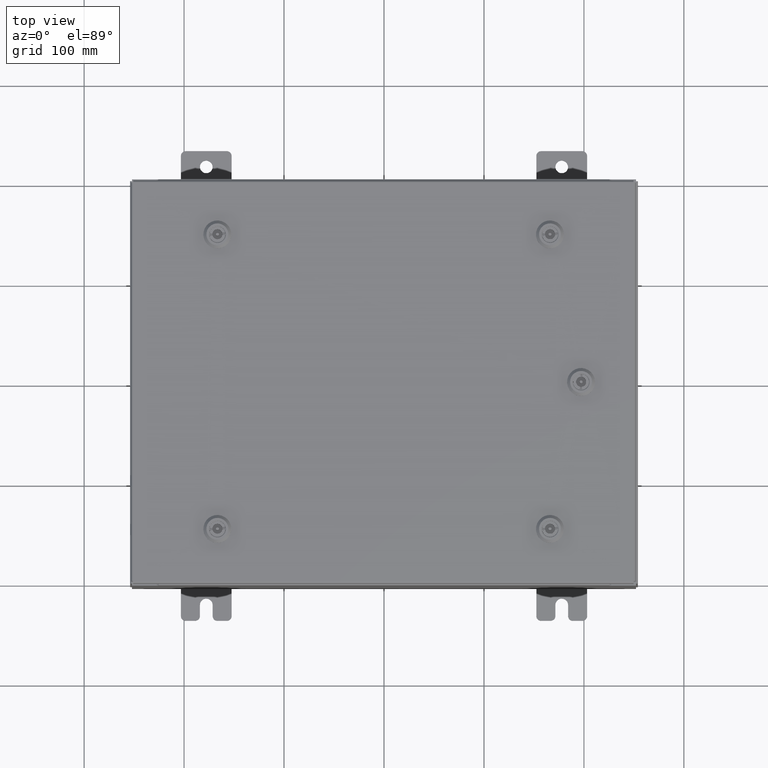
[diagram: clean part render]
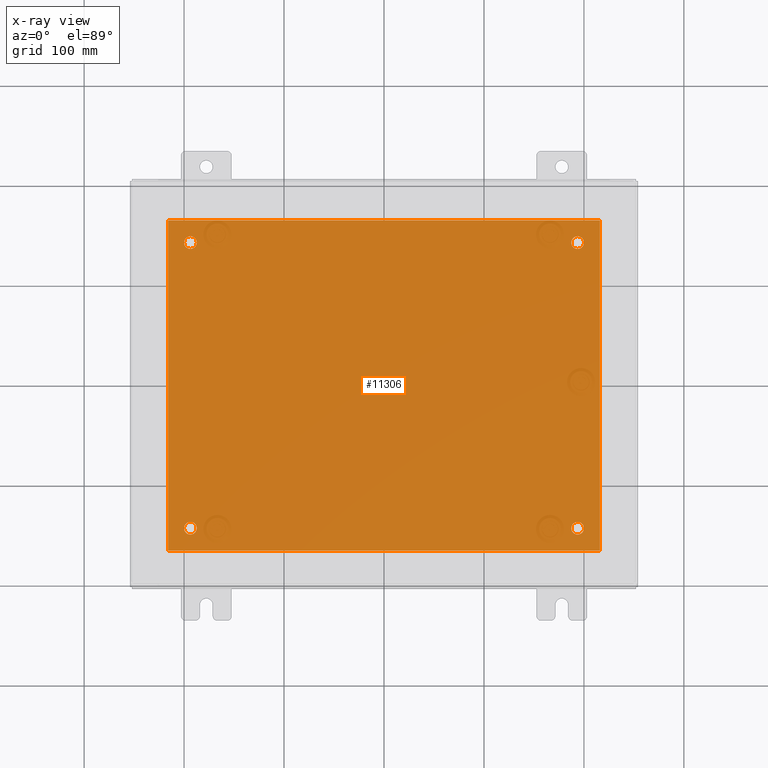
[diagram: x-ray — body ghosted, one internal face saturated and labeled with its STEP entity id]
A machine part, top view, then the same camera in x-ray: the body is ghosted and one INTERNAL B-rep face — a face not visible from any outside direction — is saturated and labeled: STEP entity #11306.
In plain terms, the highlighted planar face has unit normal (0, 0, -1).
Its self-contained STEP definition (entity closure, byte-faithful):
#39 = AXIS2_PLACEMENT_3D ( 'NONE', #48900, #19832, #53806 ) ;
#477 = DIRECTION ( 'NONE',  ( -1.000000000000000000, 0.0000000000000000000, 0.0000000000000000000 ) ) ;
#543 = ORIENTED_EDGE ( 'NONE', *, *, #13843, .F. ) ;
#889 = ORIENTED_EDGE ( 'NONE', *, *, #62983, .F. ) ;
#1059 = VERTEX_POINT ( 'NONE', #13703 ) ;
#1162 = EDGE_LOOP ( 'NONE', ( #50112, #10726 ) ) ;
#1281 = CARTESIAN_POINT ( 'NONE',  ( 8.500000000000003600, -6.500000000000000000, -0.1040000000000000400 ) ) ;
#1331 = AXIS2_PLACEMENT_3D ( 'NONE', #58648, #29586, #477 ) ;
#2456 = CARTESIAN_POINT ( 'NONE',  ( 7.625000000000000000, 5.625000000000000000, -0.1040000000000000400 ) ) ;
#4048 = ORIENTED_EDGE ( 'NONE', *, *, #25275, .F. ) ;
#4297 = CIRCLE ( 'NONE', #1331, 0.2499999999999998100 ) ;
#4315 = VECTOR ( 'NONE', #11952, 39.37007874015748100 ) ;
#4436 = EDGE_CURVE ( 'NONE', #32590, #26047, #46019, .T. ) ;
#4646 = DIRECTION ( 'NONE',  ( -1.000000000000000000, -0.0000000000000000000, -0.0000000000000000000 ) ) ;
#4746 = DIRECTION ( 'NONE',  ( -0.0000000000000000000, -0.0000000000000000000, 1.000000000000000000 ) ) ;
#4783 = EDGE_CURVE ( 'NONE', #55509, #35031, #12583, .T. ) ;
#4874 = FACE_BOUND ( 'NONE', #12177, .T. ) ;
#5002 = CARTESIAN_POINT ( 'NONE',  ( 7.625000000000000000, -5.625000000000000000, -0.1040000000000000400 ) ) ;
#7326 = DIRECTION ( 'NONE',  ( -1.000000000000000000, 0.0000000000000000000, 0.0000000000000000000 ) ) ;
#7349 = ORIENTED_EDGE ( 'NONE', *, *, #26855, .F. ) ;
#8995 = AXIS2_PLACEMENT_3D ( 'NONE', #33837, #4746, #38664 ) ;
#9289 = VERTEX_POINT ( 'NONE', #60514 ) ;
#9336 = ORIENTED_EDGE ( 'NONE', *, *, #4783, .T. ) ;
#9587 = CARTESIAN_POINT ( 'NONE',  ( 0.0000000000000000000, 0.0000000000000000000, -0.1040000000000000400 ) ) ;
#9848 = DIRECTION ( 'NONE',  ( -1.000000000000000000, 0.0000000000000000000, 0.0000000000000000000 ) ) ;
#9984 = AXIS2_PLACEMENT_3D ( 'NONE', #9587, #14480, #48428 ) ;
#10198 = EDGE_LOOP ( 'NONE', ( #889, #543, #4048, #7349 ) ) ;
#10726 = ORIENTED_EDGE ( 'NONE', *, *, #24074, .T. ) ;
#10830 = CIRCLE ( 'NONE', #39, 0.2499999999999998100 ) ;
#11306 = ADVANCED_FACE ( 'NONE', ( #17794, #4874, #56531, #32229, #30690 ), #14264, .T. ) ;
#11310 = CARTESIAN_POINT ( 'NONE',  ( -8.499999999999996400, -6.500000000000000000, -0.1040000000000000400 ) ) ;
#11952 = DIRECTION ( 'NONE',  ( 0.0000000000000000000, 1.000000000000000000, 0.0000000000000000000 ) ) ;
#12167 = VECTOR ( 'NONE', #4646, 39.37007874015748100 ) ;
#12177 = EDGE_LOOP ( 'NONE', ( #37936, #36617 ) ) ;
#12535 = CIRCLE ( 'NONE', #37927, 0.2499999999999987000 ) ;
#12583 = CIRCLE ( 'NONE', #8995, 0.2499999999999998100 ) ;
#13703 = CARTESIAN_POINT ( 'NONE',  ( 7.375000000000000900, -5.625000000000000000, -0.1040000000000000400 ) ) ;
#13778 = CARTESIAN_POINT ( 'NONE',  ( 7.625000000000000000, -5.625000000000000000, -0.1040000000000000400 ) ) ;
#13843 = EDGE_CURVE ( 'NONE', #16119, #50153, #38100, .T. ) ;
#14264 = PLANE ( 'NONE',  #9984 ) ;
#14480 = DIRECTION ( 'NONE',  ( 0.0000000000000000000, 0.0000000000000000000, -1.000000000000000000 ) ) ;
#14746 = AXIS2_PLACEMENT_3D ( 'NONE', #49271, #20198, #54179 ) ;
#15115 = CIRCLE ( 'NONE', #51858, 0.2499999999999998100 ) ;
#16119 = VERTEX_POINT ( 'NONE', #11310 ) ;
#17794 = FACE_BOUND ( 'NONE', #1162, .T. ) ;
#18667 = DIRECTION ( 'NONE',  ( -1.000000000000000000, 0.0000000000000000000, 0.0000000000000000000 ) ) ;
#18820 = CARTESIAN_POINT ( 'NONE',  ( -8.499999999999996400, 6.500000000000000000, -0.1040000000000000400 ) ) ;
#19117 = VECTOR ( 'NONE', #42974, 39.37007874015748100 ) ;
#19832 = DIRECTION ( 'NONE',  ( -0.0000000000000000000, -0.0000000000000000000, 1.000000000000000000 ) ) ;
#20198 = DIRECTION ( 'NONE',  ( -0.0000000000000000000, -0.0000000000000000000, 1.000000000000000000 ) ) ;
#20945 = ORIENTED_EDGE ( 'NONE', *, *, #60435, .T. ) ;
#24074 = EDGE_CURVE ( 'NONE', #62860, #9289, #10830, .T. ) ;
#24404 = CARTESIAN_POINT ( 'NONE',  ( 7.375000000000000900, 5.625000000000000000, -0.1040000000000000400 ) ) ;
#25194 = VECTOR ( 'NONE', #47539, 39.37007874015748100 ) ;
#25275 = EDGE_CURVE ( 'NONE', #30837, #16119, #41882, .T. ) ;
#25934 = CARTESIAN_POINT ( 'NONE',  ( -7.625000000000000000, 5.625000000000000000, -0.1040000000000000400 ) ) ;
#26047 = VERTEX_POINT ( 'NONE', #33045 ) ;
#26855 = EDGE_CURVE ( 'NONE', #61479, #30837, #34966, .T. ) ;
#28721 = EDGE_CURVE ( 'NONE', #35031, #55509, #15115, .T. ) ;
#29586 = DIRECTION ( 'NONE',  ( -0.0000000000000000000, -0.0000000000000000000, 1.000000000000000000 ) ) ;
#30690 = FACE_OUTER_BOUND ( 'NONE', #10198, .T. ) ;
#30806 = DIRECTION ( 'NONE',  ( -1.000000000000000000, 0.0000000000000000000, 0.0000000000000000000 ) ) ;
#30837 = VERTEX_POINT ( 'NONE', #18820 ) ;
#32229 = FACE_BOUND ( 'NONE', #44883, .T. ) ;
#32569 = CIRCLE ( 'NONE', #14746, 0.2499999999999987000 ) ;
#32590 = VERTEX_POINT ( 'NONE', #24404 ) ;
#33045 = CARTESIAN_POINT ( 'NONE',  ( 7.874999999999998200, 5.625000000000000000, -0.1040000000000000400 ) ) ;
#33837 = CARTESIAN_POINT ( 'NONE',  ( -7.625000000000000000, 5.625000000000000000, -0.1040000000000000400 ) ) ;
#34966 = LINE ( 'NONE', #62806, #12167 ) ;
#35031 = VERTEX_POINT ( 'NONE', #50258 ) ;
#36231 = AXIS2_PLACEMENT_3D ( 'NONE', #2456, #36384, #7326 ) ;
#36384 = DIRECTION ( 'NONE',  ( -0.0000000000000000000, -0.0000000000000000000, 1.000000000000000000 ) ) ;
#36617 = ORIENTED_EDGE ( 'NONE', *, *, #38036, .T. ) ;
#37772 = CARTESIAN_POINT ( 'NONE',  ( -8.499999999999996400, -6.500000000000000000, -0.1040000000000000400 ) ) ;
#37900 = CARTESIAN_POINT ( 'NONE',  ( -8.499999999999996400, -6.500000000000000000, -0.1040000000000000400 ) ) ;
#37927 = AXIS2_PLACEMENT_3D ( 'NONE', #13778, #47727, #18667 ) ;
#37936 = ORIENTED_EDGE ( 'NONE', *, *, #45341, .T. ) ;
#38036 = EDGE_CURVE ( 'NONE', #1059, #55453, #12535, .T. ) ;
#38100 = LINE ( 'NONE', #37772, #25194 ) ;
#38664 = DIRECTION ( 'NONE',  ( -1.000000000000000000, 0.0000000000000000000, 0.0000000000000000000 ) ) ;
#38931 = DIRECTION ( 'NONE',  ( -0.0000000000000000000, -0.0000000000000000000, 1.000000000000000000 ) ) ;
#41882 = LINE ( 'NONE', #37900, #19117 ) ;
#42974 = DIRECTION ( 'NONE',  ( -0.0000000000000000000, -1.000000000000000000, -0.0000000000000000000 ) ) ;
#42992 = LINE ( 'NONE', #60591, #4315 ) ;
#44231 = AXIS2_PLACEMENT_3D ( 'NONE', #5002, #38931, #9848 ) ;
#44883 = EDGE_LOOP ( 'NONE', ( #62484, #9336 ) ) ;
#45341 = EDGE_CURVE ( 'NONE', #55453, #1059, #46288, .T. ) ;
#46019 = CIRCLE ( 'NONE', #36231, 0.2499999999999987000 ) ;
#46288 = CIRCLE ( 'NONE', #44231, 0.2499999999999987000 ) ;
#47539 = DIRECTION ( 'NONE',  ( 1.000000000000000000, 0.0000000000000000000, 0.0000000000000000000 ) ) ;
#47727 = DIRECTION ( 'NONE',  ( -0.0000000000000000000, -0.0000000000000000000, 1.000000000000000000 ) ) ;
#48428 = DIRECTION ( 'NONE',  ( -1.000000000000000000, 0.0000000000000000000, -0.0000000000000000000 ) ) ;
#48900 = CARTESIAN_POINT ( 'NONE',  ( -7.625000000000000000, -5.625000000000000000, -0.1040000000000000400 ) ) ;
#49089 = CARTESIAN_POINT ( 'NONE',  ( -7.874999999999999100, -5.625000000000000000, -0.1040000000000000400 ) ) ;
#49271 = CARTESIAN_POINT ( 'NONE',  ( 7.625000000000000000, 5.625000000000000000, -0.1040000000000000400 ) ) ;
#49510 = EDGE_CURVE ( 'NONE', #9289, #62860, #4297, .T. ) ;
#49821 = EDGE_LOOP ( 'NONE', ( #20945, #60094 ) ) ;
#50112 = ORIENTED_EDGE ( 'NONE', *, *, #49510, .T. ) ;
#50153 = VERTEX_POINT ( 'NONE', #1281 ) ;
#50258 = CARTESIAN_POINT ( 'NONE',  ( -7.375000000000000000, 5.625000000000000000, -0.1040000000000000400 ) ) ;
#51858 = AXIS2_PLACEMENT_3D ( 'NONE', #25934, #59910, #30806 ) ;
#51909 = CARTESIAN_POINT ( 'NONE',  ( -7.874999999999999100, 5.625000000000000000, -0.1040000000000000400 ) ) ;
#53504 = CARTESIAN_POINT ( 'NONE',  ( 8.500000000000003600, 6.500000000000000000, -0.1040000000000000400 ) ) ;
#53806 = DIRECTION ( 'NONE',  ( -1.000000000000000000, 0.0000000000000000000, 0.0000000000000000000 ) ) ;
#54179 = DIRECTION ( 'NONE',  ( -1.000000000000000000, 0.0000000000000000000, 0.0000000000000000000 ) ) ;
#55453 = VERTEX_POINT ( 'NONE', #61472 ) ;
#55509 = VERTEX_POINT ( 'NONE', #51909 ) ;
#56531 = FACE_BOUND ( 'NONE', #49821, .T. ) ;
#58648 = CARTESIAN_POINT ( 'NONE',  ( -7.625000000000000000, -5.625000000000000000, -0.1040000000000000400 ) ) ;
#59910 = DIRECTION ( 'NONE',  ( -0.0000000000000000000, -0.0000000000000000000, 1.000000000000000000 ) ) ;
#60094 = ORIENTED_EDGE ( 'NONE', *, *, #4436, .T. ) ;
#60435 = EDGE_CURVE ( 'NONE', #26047, #32590, #32569, .T. ) ;
#60514 = CARTESIAN_POINT ( 'NONE',  ( -7.375000000000000000, -5.625000000000000000, -0.1040000000000000400 ) ) ;
#60591 = CARTESIAN_POINT ( 'NONE',  ( 8.500000000000003600, -6.500000000000000000, -0.1040000000000000400 ) ) ;
#61472 = CARTESIAN_POINT ( 'NONE',  ( 7.874999999999998200, -5.625000000000000000, -0.1040000000000000400 ) ) ;
#61479 = VERTEX_POINT ( 'NONE', #53504 ) ;
#62484 = ORIENTED_EDGE ( 'NONE', *, *, #28721, .T. ) ;
#62806 = CARTESIAN_POINT ( 'NONE',  ( -8.499999999999996400, 6.500000000000000000, -0.1040000000000000400 ) ) ;
#62860 = VERTEX_POINT ( 'NONE', #49089 ) ;
#62983 = EDGE_CURVE ( 'NONE', #50153, #61479, #42992, .T. ) ;